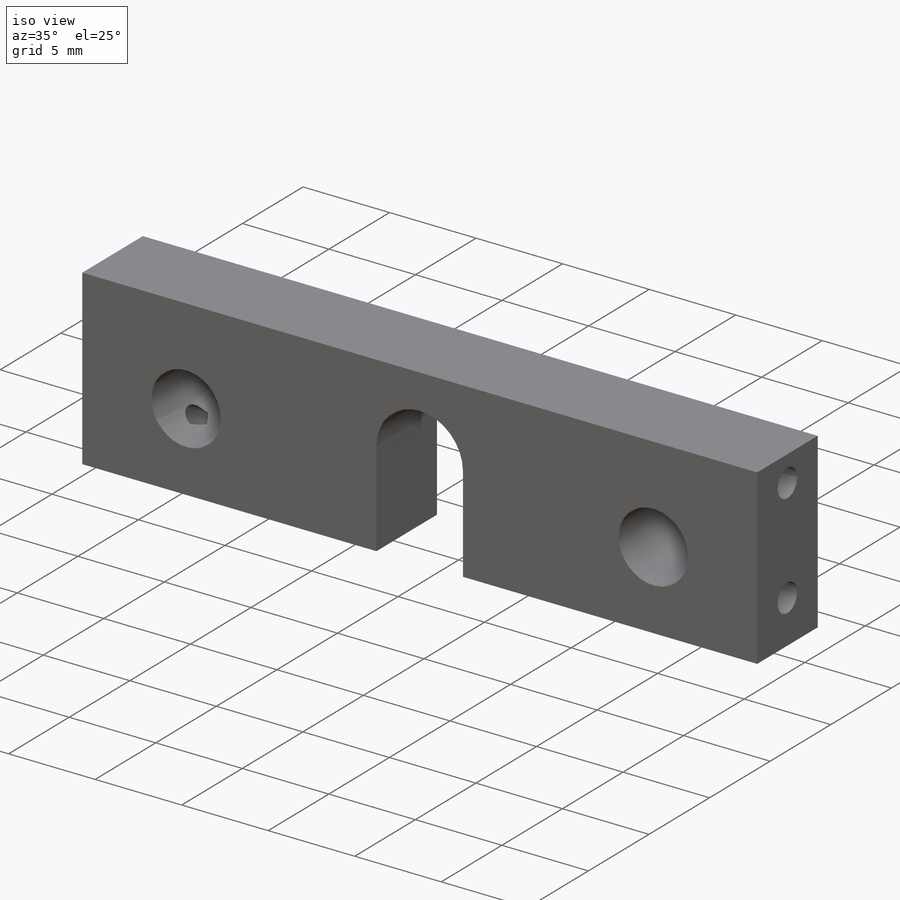
[diagram: iso view]
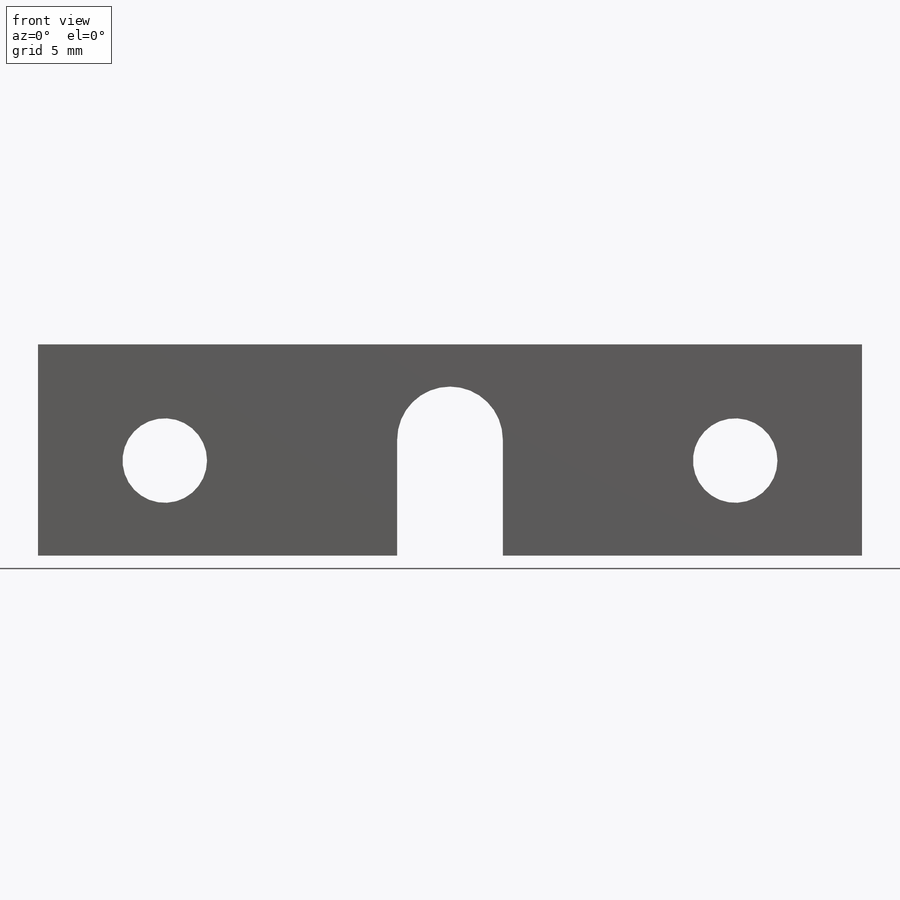
[diagram: front view]
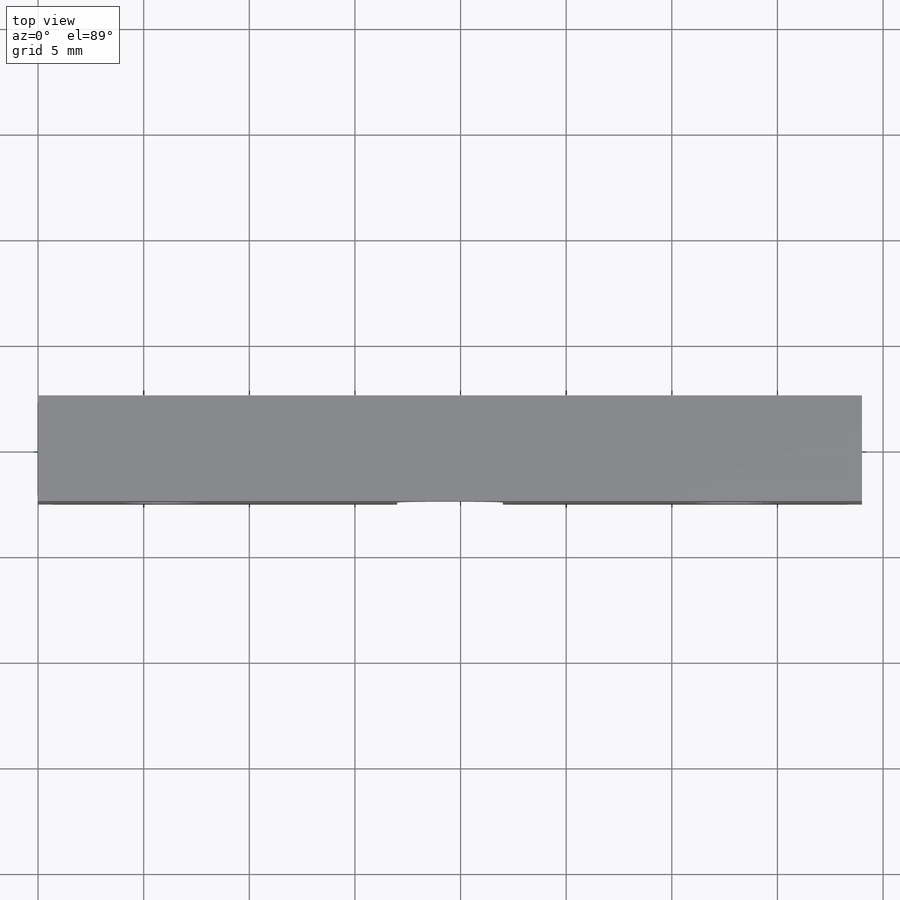
[diagram: top view]
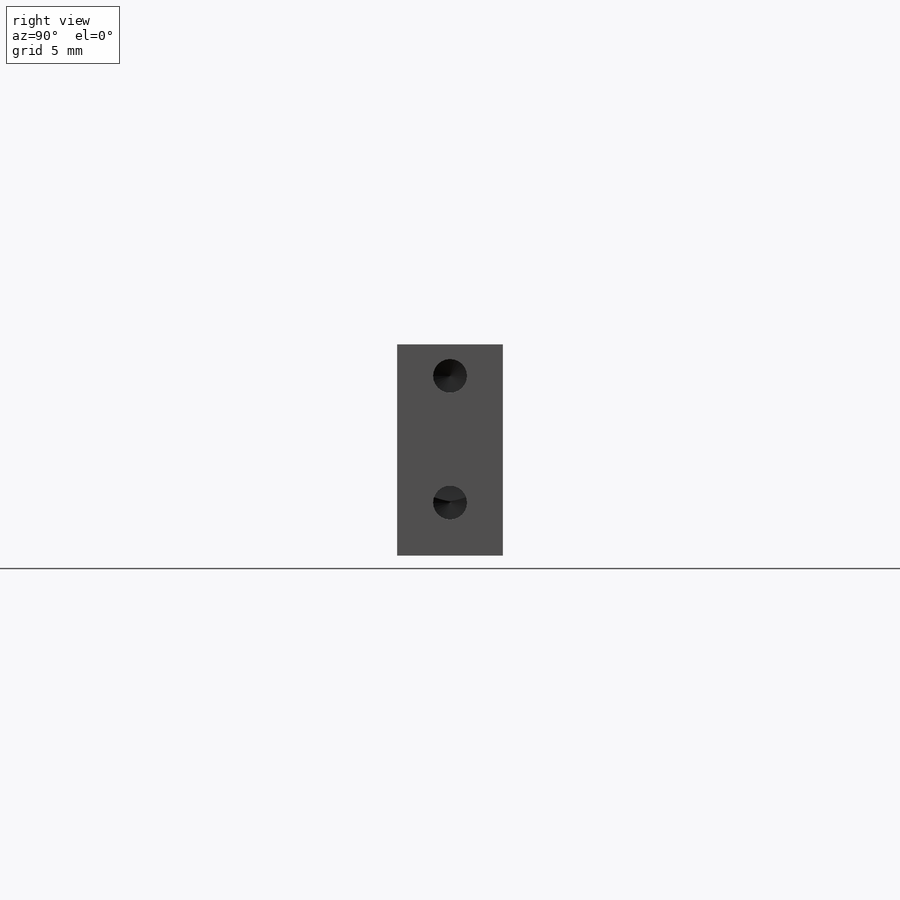
[diagram: right view]
SOLIDWORKS PART (.sldprt)
format: sldprt  version: not decoded by parser v0  size: 248,320 bytes
history: native  units: mm
features: sketch x6, hole x2, material x1, extrude x1, cut_extrude x1 (+11 scaffold rows collapsed)
feature tree (22):
  scaffold x11  (default folders/planes/origin — collapsed)
  material  "Material <not specified>"
  sketch  "Sketch1"  dims[c1.D1=~9.824037mm c2.D1=90.0deg c3.D1=5.0mm c3.D2=8.5mm c3.D3=2.5mm c4.D2=10.0mm]
  extrude  "Boss-Extrude1"  Depth=39mm
  hole  "Tap Drill for M2x0.4 Tap1"  Diameter=1.6mm Depth=5mm
  sketch  "Sketch3"  dims[c1.D1=6.0mm c1.D2=2.5mm c2.D1=6.0mm c2.D2=2.5mm]
  sketch  "Sketch2"  dims[hole-wizard template sketch: 49 standard entries collapsed; hole parameters kept: c15.Drill Angle=118.0deg]
  hole  "Tap Drill for M2x0.4 Tap2"  Diameter=1.6mm Depth=5mm
  sketch  "Sketch5"  dims[D1=2.5mm D2=6.0mm]
  sketch  "Sketch4"  dims[hole-wizard template sketch: 49 standard entries collapsed; hole parameters kept: c15.Drill Angle=118.0deg]
  sketch  "Sketch8"  dims[c1.D1=4.0mm c1.D2=2.5mm c1.D3=17.8mm c1.D4=6.0mm c1.D5=5.5mm c1.D6=6.0mm c1.D7=4.5mm c2.D3=19.5mm]
  cut_extrude  "Cut-Extrude1"  [1 undecoded]
decode coverage: 9 of 10 modeling features carry decoded parameters
note: ~ marks probable driven/reference dimensions
note: 1 parameter value undecoded
note: suppression state not decoded; provenance and decode notes live in map.json
